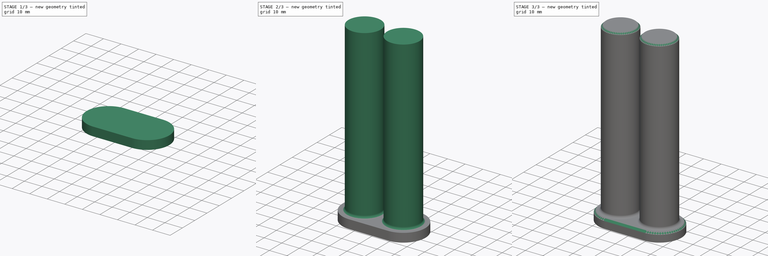
[diagram: build sequence overview — one tinted view per stage of 3, left to right]
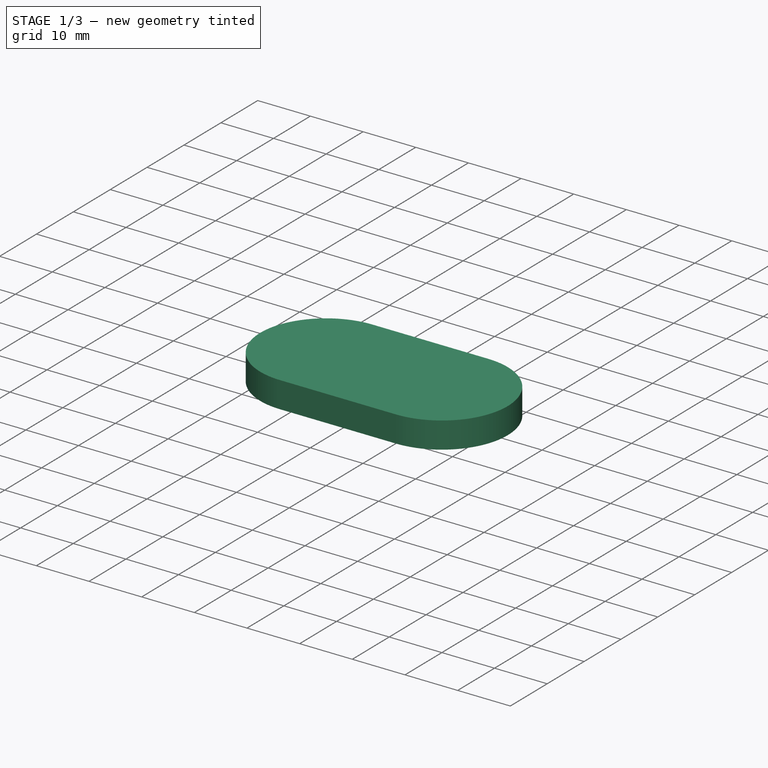
[diagram: stage 1 of 3 — iso view after this stage's code; geometry added in this stage tinted green]
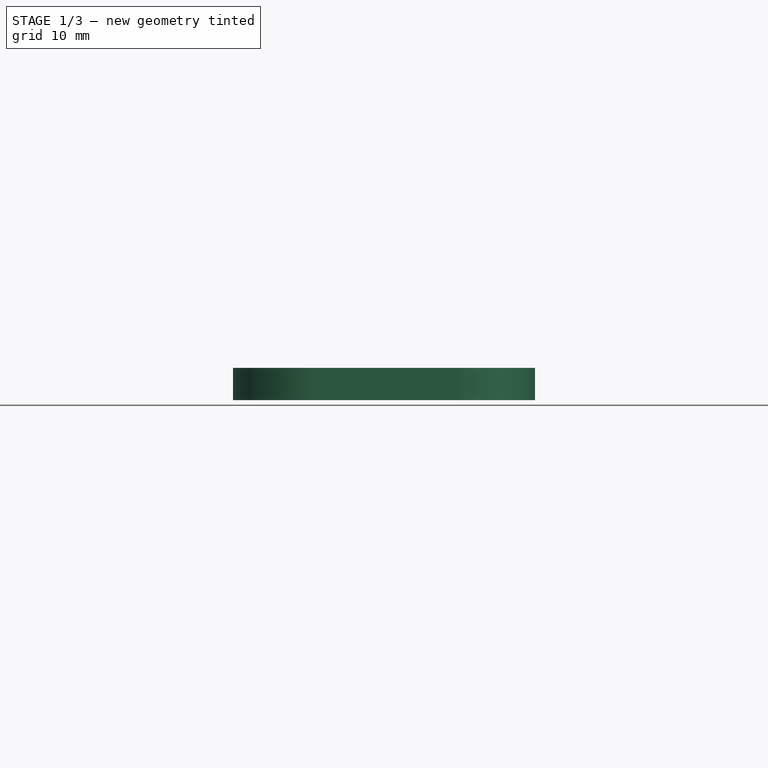
[diagram: stage 1 of 3 — front view after this stage's code; geometry added in this stage tinted green]
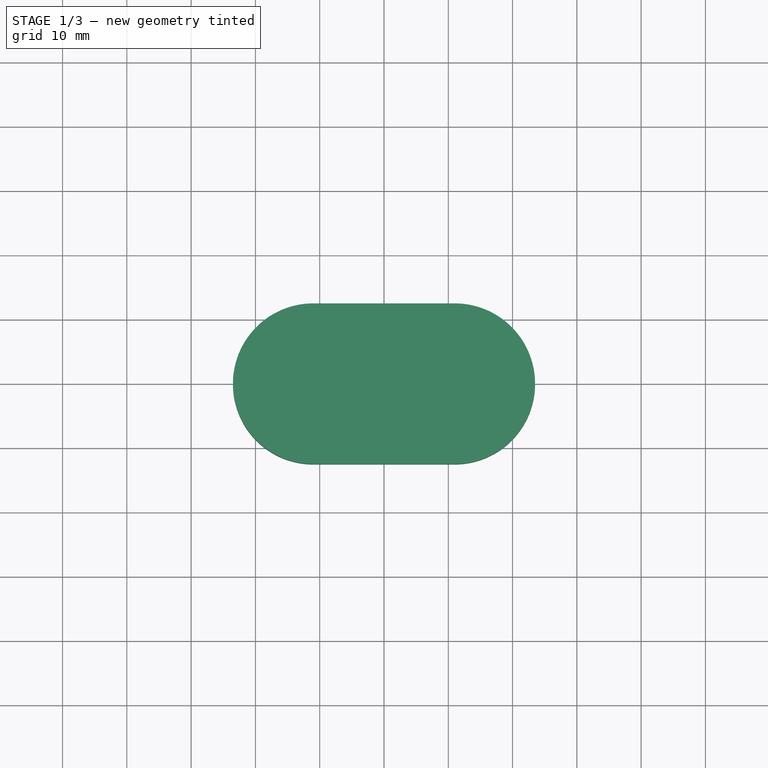
[diagram: stage 1 of 3 — top view after this stage's code; geometry added in this stage tinted green]
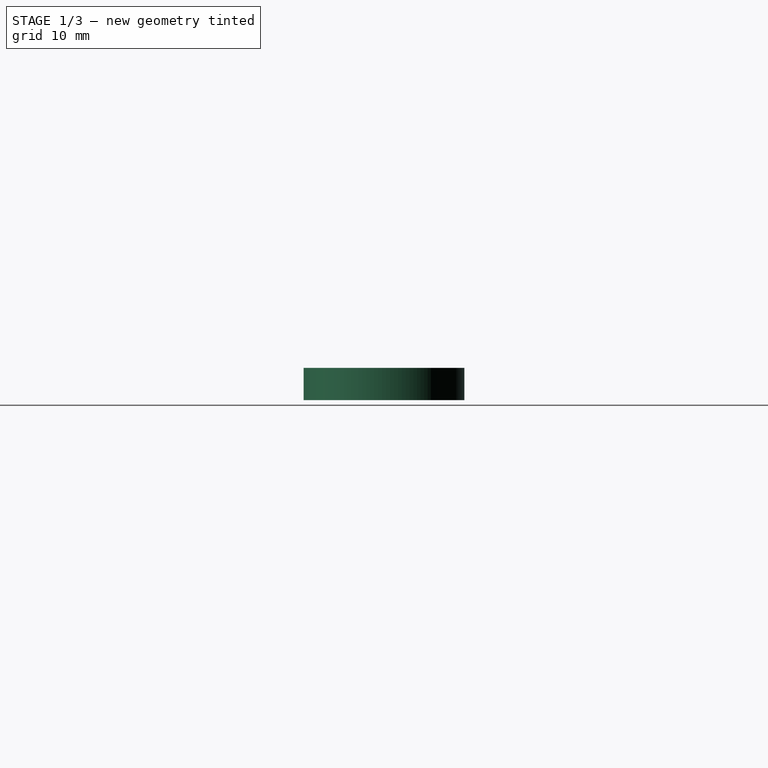
[diagram: stage 1 of 3 — right view after this stage's code; geometry added in this stage tinted green]
FCSTD DOCUMENT  (FreeCAD 0.20R29177 (Git))
Label: epoxy_plunger
License: All rights reserved
LicenseURL: http://en.wikipedia.org/wiki/All_rights_reserved
objects: Sketcher::SketchObject×2, PartDesign::Pad×2, PartDesign::Mirrored×2, PartDesign::Chamfer×2, PartDesign::Fillet×1, PartDesign::Body×1
note: 15 computed .brp shape members not serialized (recipe doc carries the construction recipe); baked Part::Feature solids carry a one-line shape summary decoded from their .brp

FEATURE [Sketcher::SketchObject] Sketch
  FullyConstrained = true
  MapMode = 5
  Support = -> [XY_Plane]
  sketch-geometry (6):
    g0: Circle CenterX=11 CenterY=0 CenterZ=0 NormalX=0 NormalY=0 NormalZ=1 AngleXU=0 Radius=9.4
    g1: ArcOfCircle CenterX=11 CenterY=0 CenterZ=0 NormalX=0 NormalY=0 NormalZ=1 AngleXU=0 Radius=12.5 StartAngle=4.71239 EndAngle=7.85398
    g2: LineSegment StartX=11 StartY=12.5 StartZ=0 EndX=0 EndY=12.5 EndZ=0
    g3: LineSegment StartX=0 StartY=12.5 StartZ=0 EndX=0 EndY=-12.5 EndZ=0
    g4: LineSegment StartX=0 StartY=-12.5 StartZ=0 EndX=11 EndY=-12.5 EndZ=0
    g5: LineSegment StartX=11 StartY=12.5 StartZ=0 EndX=11 EndY=-12.5 EndZ=0
  constraints (17):
    c: PointOnObject(g0,g-1)
    c: Diameter(g0) = 18.8
    c: DistanceX(g-1,g0) = 11
    c: Coincident(g1,g0)
    c: Coincident(g2,g3)
    c: Coincident(g3,g4)
    c: Horizontal(g2)
    c: Horizontal(g4)
    c: Vertical(g3)
    c: Coincident(g2,g1)
    c: PointOnObject(g3,g-2)
    c: Coincident(g4,g1)
    c: Coincident(g5,g1)
    c: Coincident(g5,g1)
    c: Vertical(g5)
    c: Diameter(g1) = 25
    c: PointOnObject(g1,g5)
FEATURE [PartDesign::Pad] Pad
  Direction = (0,0,1)
  Length = 5
  Length2 = 10
  Profile = -> Sketch
  ReferenceAxis = -> Sketch [N_Axis]
  Type = 0
FEATURE [PartDesign::Mirrored] Mirrored
  BaseFeature = -> Pad
  MirrorPlane = -> Sketch [V_Axis]
  Originals = -> [Pad]
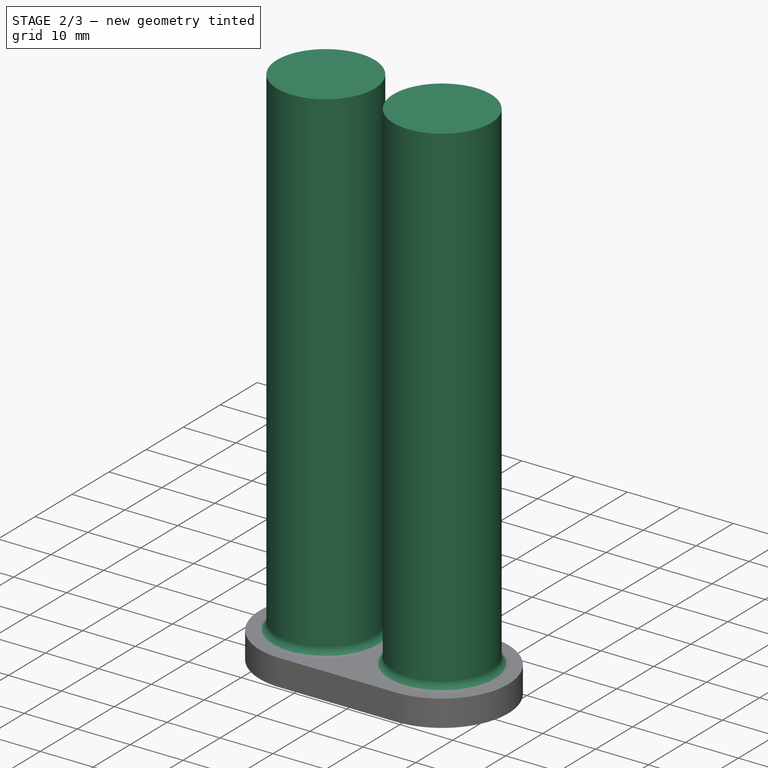
[diagram: stage 2 of 3 — iso view after this stage's code; geometry added in this stage tinted green]
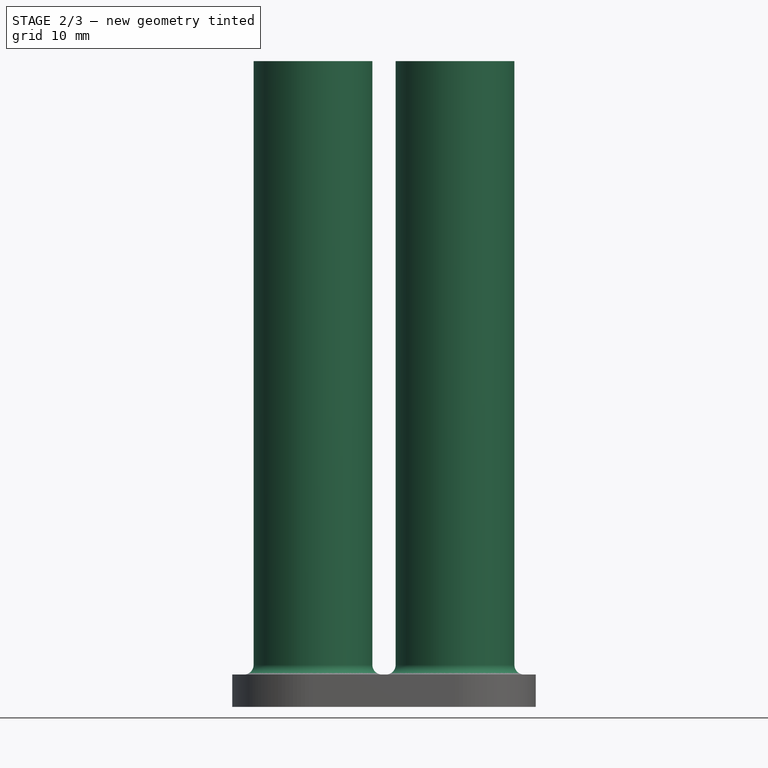
[diagram: stage 2 of 3 — front view after this stage's code; geometry added in this stage tinted green]
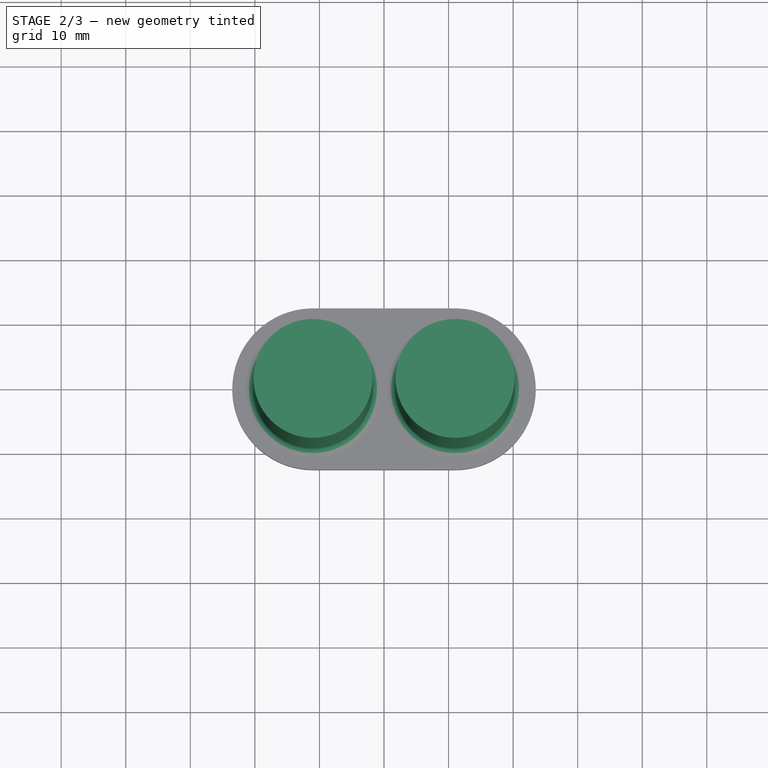
[diagram: stage 2 of 3 — top view after this stage's code; geometry added in this stage tinted green]
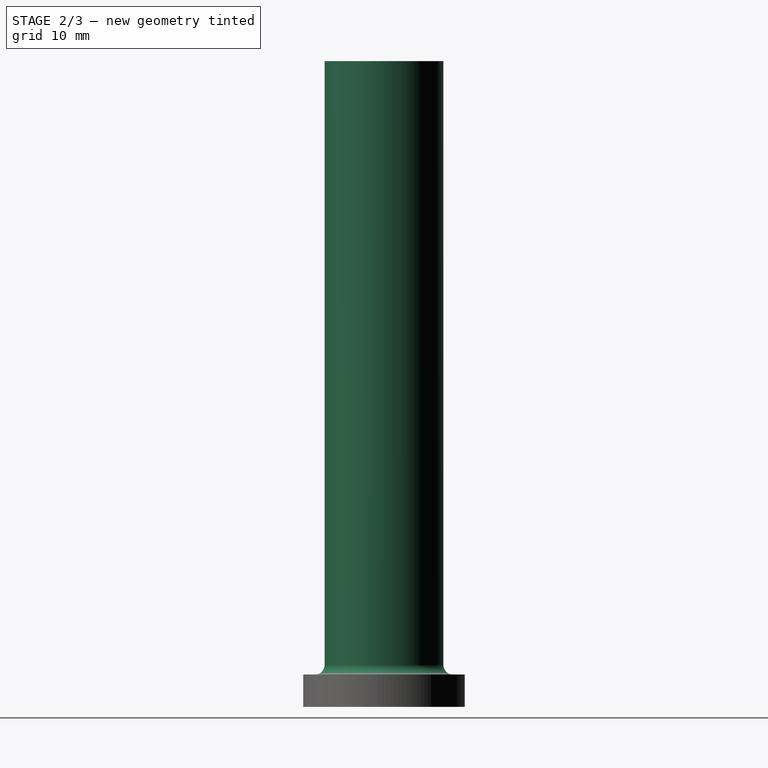
[diagram: stage 2 of 3 — right view after this stage's code; geometry added in this stage tinted green]
FEATURE [Sketcher::SketchObject] Sketch001
  ExternalGeometry = -> [Mirrored]
  FullyConstrained = true
  MapMode = 5
  Placement = pos=(0,0,5) rot=(0,0,1;0rad)
  Support = -> [Mirrored]
  sketch-geometry (1):
    g0: Circle CenterX=11 CenterY=0 CenterZ=0 NormalX=0 NormalY=0 NormalZ=1 AngleXU=0 Radius=9.2
  constraints (2):
    c: Coincident(g0,g-3)
    c: Diameter(g0) = 18.4
FEATURE [PartDesign::Pad] Pad001
  BaseFeature = -> Mirrored
  Direction = (0,0,1)
  Length = 95
  Length2 = 10
  Profile = -> Sketch001
  ReferenceAxis = -> Sketch001 [N_Axis]
  Refine = true
  Type = 0
FEATURE [PartDesign::Mirrored] Mirrored001
  BaseFeature = -> Pad001
  MirrorPlane = -> Sketch001 [V_Axis]
  Originals = -> [Pad001]
  Refine = true
FEATURE [PartDesign::Fillet] Fillet
  Base = -> Mirrored001 [Edge13,Edge14]
  BaseFeature = -> Mirrored001
  Radius = 1.5
  Refine = true
  SupportTransform = false
  UseAllEdges = false
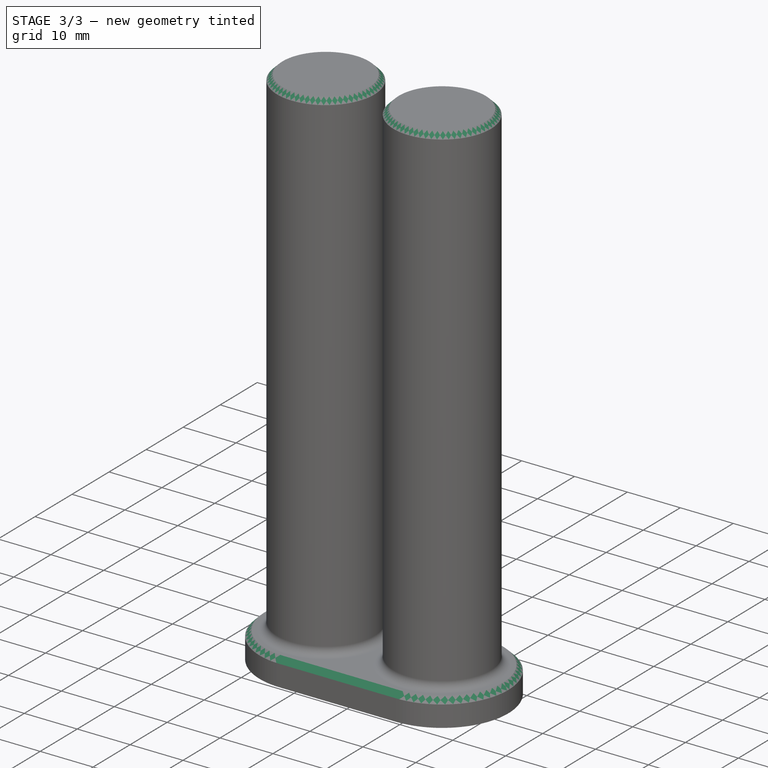
[diagram: stage 3 of 3 — iso view after this stage's code; geometry added in this stage tinted green]
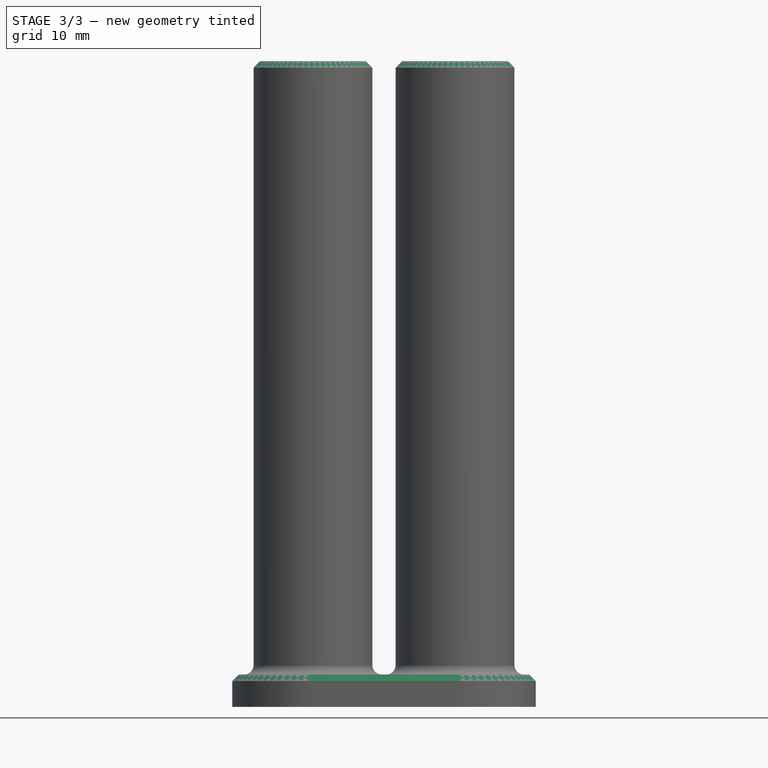
[diagram: stage 3 of 3 — front view after this stage's code; geometry added in this stage tinted green]
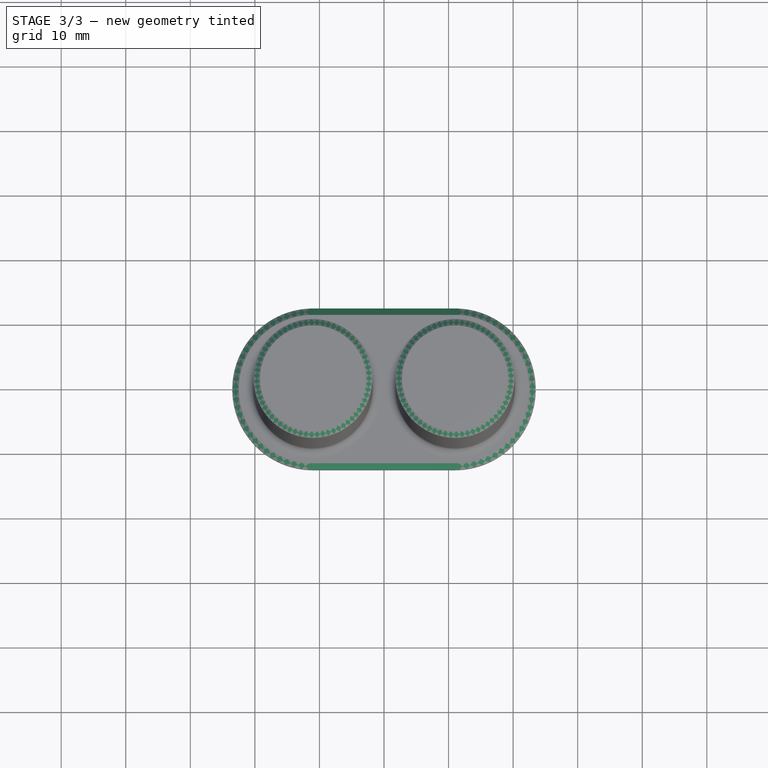
[diagram: stage 3 of 3 — top view after this stage's code; geometry added in this stage tinted green]
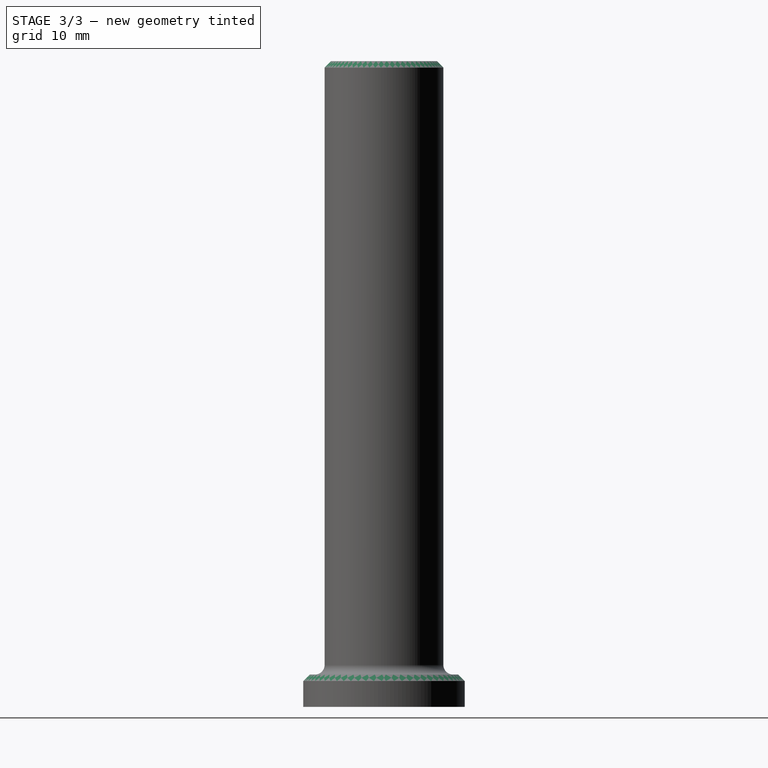
[diagram: stage 3 of 3 — right view after this stage's code; geometry added in this stage tinted green]
FEATURE [PartDesign::Chamfer] Chamfer
  Angle = 45
  Base = -> Fillet [Edge5,Edge3,Edge2,Edge4]
  BaseFeature = -> Fillet
  ChamferType = 0
  FlipDirection = false
  Refine = true
  Size = 1
  Size2 = 1
  SupportTransform = false
  UseAllEdges = false
FEATURE [PartDesign::Chamfer] Chamfer001
  Angle = 45
  Base = -> Chamfer [Edge28,Edge30]
  BaseFeature = -> Chamfer
  ChamferType = 0
  FlipDirection = false
  Refine = true
  Size = 1
  Size2 = 1
  SupportTransform = false
  UseAllEdges = false
FEATURE [PartDesign::Body] Body  label="epoxy_plunger"
  Group = -> [Sketch,Pad,Mirrored,Sketch001,Pad001,Mirrored001,Fillet,Chamfer,Chamfer001]
  Origin = -> Origin
  Tip = -> Chamfer001
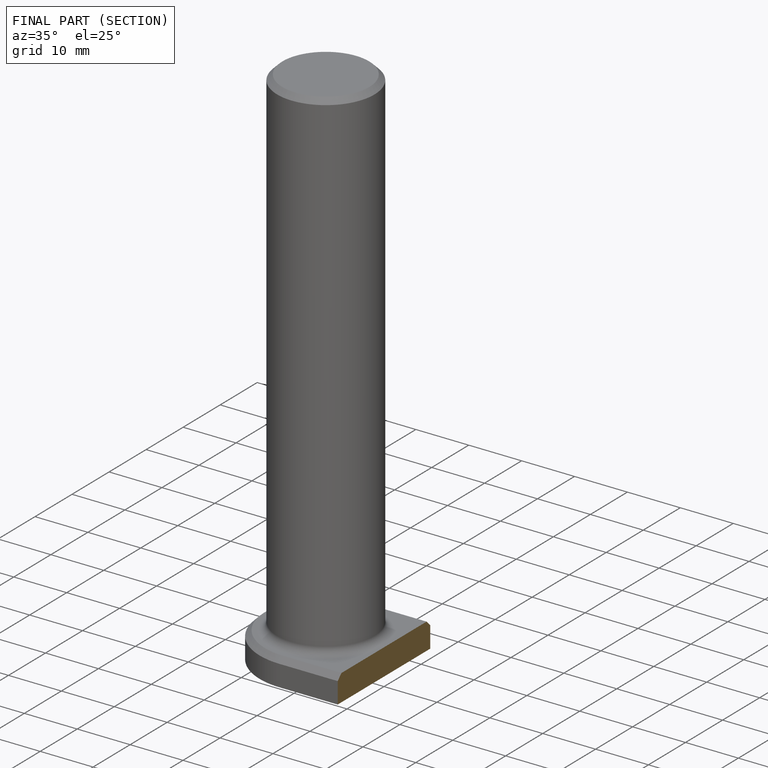
[diagram: finished part — half-section view (interior)]
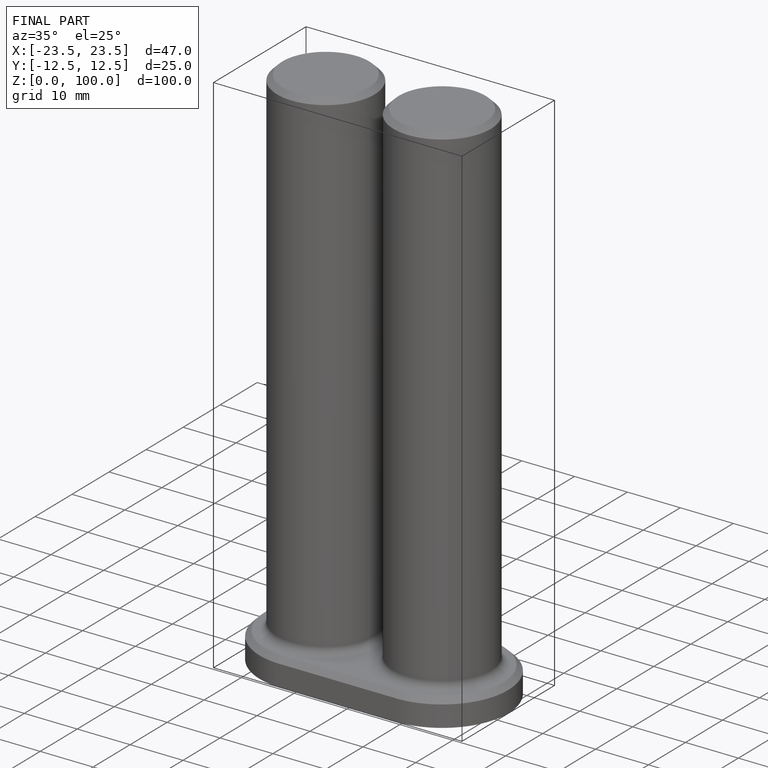
[diagram: finished part — iso view with bounding-box wireframe]
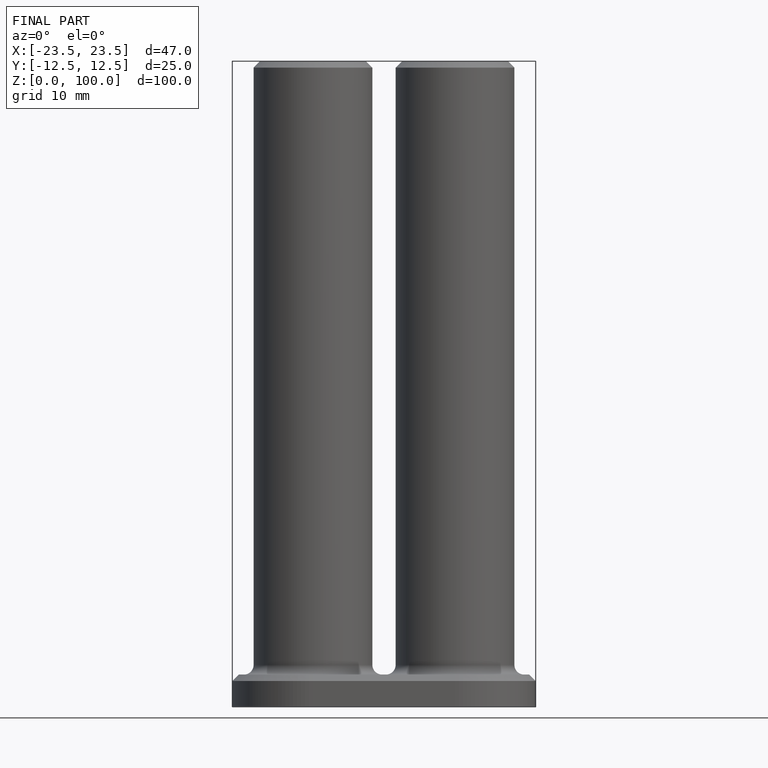
[diagram: finished part — front view with bounding-box wireframe]
